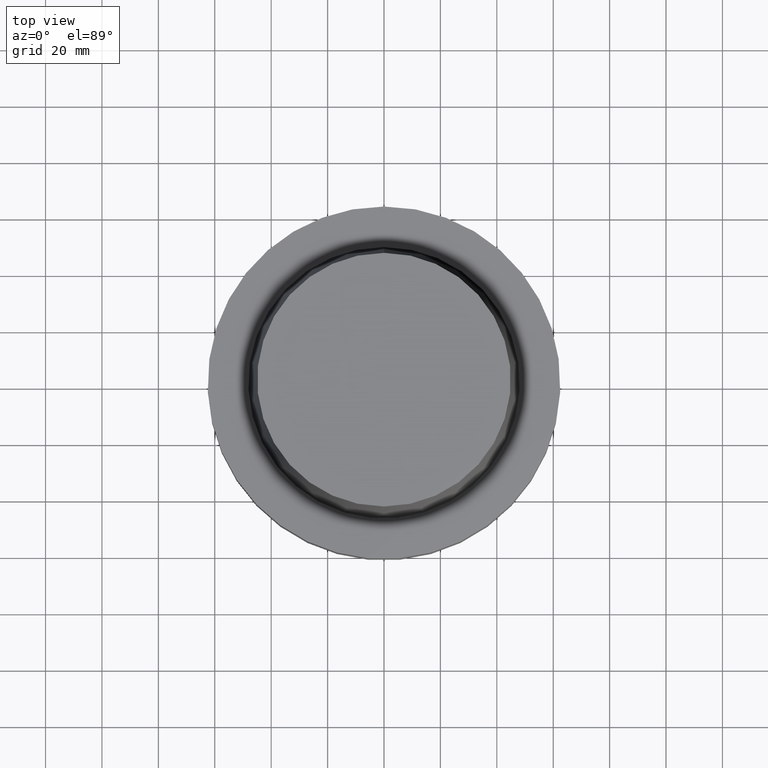
[diagram: clean part render]
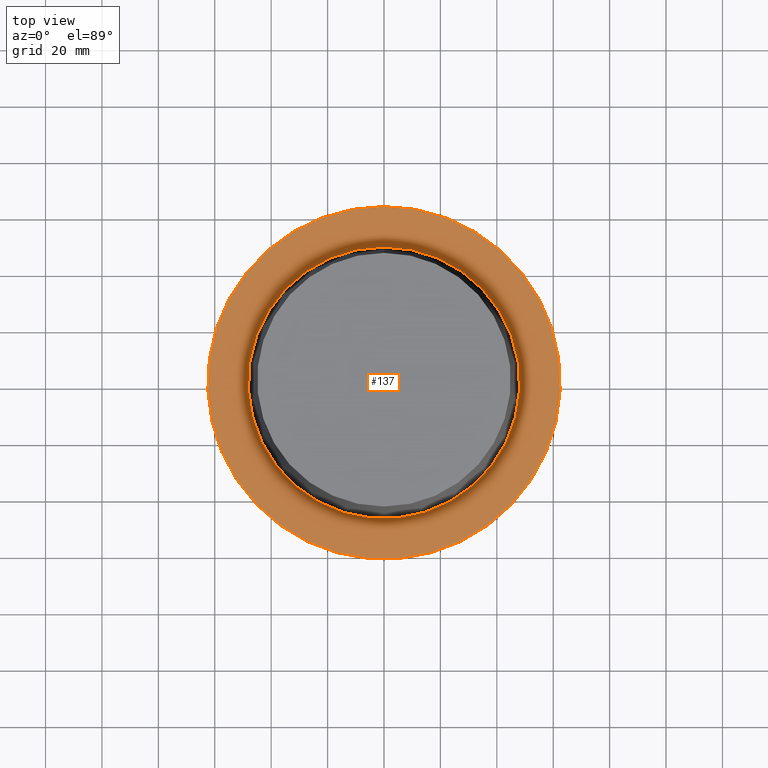
[diagram: same view with one face highlighted and labeled with its STEP entity id]
A machine part, top view. The second image highlights one B-rep face of the part: STEP entity #137.
In plain terms, the highlighted planar face has unit normal (-0, -0, 1).
Its self-contained STEP definition (entity closure, byte-faithful):
#110=EDGE_CURVE('Unnamed[1]',#241,#241,#242,.T.);
#122=EDGE_CURVE('Unnamed[1]',#259,#259,#260,.T.);
#137=ADVANCED_FACE('Unnamed[1]',(#282,#283),#284,.T.);
#241=VERTEX_POINT('',#401);
#242=CIRCLE('',#402,62.5000000000002);
#259=VERTEX_POINT('',#424);
#260=CIRCLE('',#425,48.1342525050097);
#282=FACE_OUTER_BOUND('',#453,.T.);
#283=FACE_BOUND('',#454,.T.);
#284=PLANE('',#455);
#401=CARTESIAN_POINT('',(-5.58935713239973E-030,62.5000000000002,8.63540424946709E-014));
#402=AXIS2_PLACEMENT_3D('',#557,#558,#559);
#424=CARTESIAN_POINT('',(3.88342032297484E-029,48.1342525050097,-6.38005254174039E-013));
#425=AXIS2_PLACEMENT_3D('',#577,#578,#579);
#453=EDGE_LOOP('',(#602));
#454=EDGE_LOOP('',(#603));
#455=AXIS2_PLACEMENT_3D('',#604,#605,#606);
#557=CARTESIAN_POINT('',(-5.22098332203606E-030,-1.04419666440721E-029,8.5265128291212E-014));
#558=DIRECTION('',(6.12323399573677E-017,1.22464679914723E-016,-1.0));
#559=DIRECTION('',(-1.23259516440783E-032,1.0,1.22464679914723E-016));
#577=CARTESIAN_POINT('',(3.91573749152705E-029,7.83147498305409E-029,-6.3948846218409E-013));
#578=DIRECTION('',(6.12323399573677E-017,1.22464679914742E-016,-1.0));
#579=DIRECTION('',(-1.23259516440755E-032,1.0,1.22464679914742E-016));
#602=ORIENTED_EDGE('',*,*,#110,.F.);
#603=ORIENTED_EDGE('',*,*,#122,.T.);
#604=CARTESIAN_POINT('',(1.66224230486744E-029,55.317126252505,-2.75825605839684E-013));
#605=DIRECTION('',(-6.12323399573677E-017,-5.04226666187264E-014,1.0));
#606=DIRECTION('',(3.09232501668564E-030,-1.0,-5.04226666187264E-014));